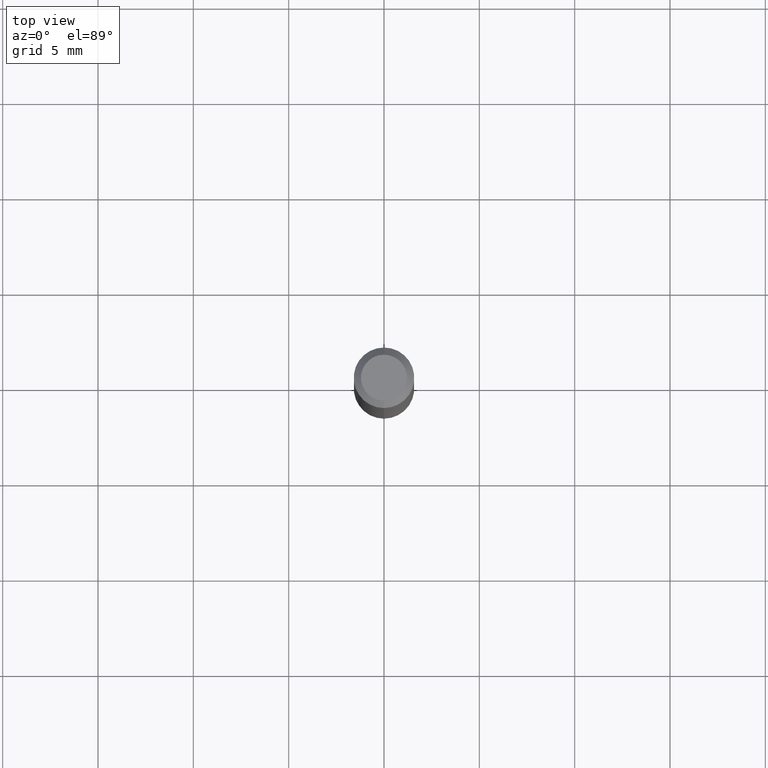
[diagram: clean part render]
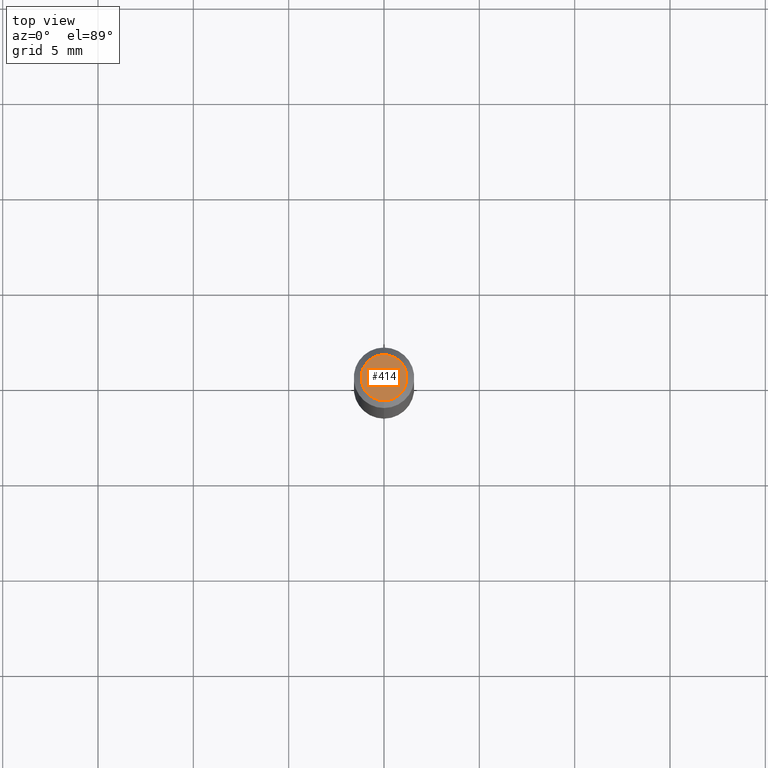
[diagram: same view with one face highlighted and labeled with its STEP entity id]
A machine part, top view. The second image highlights one B-rep face of the part: STEP entity #414.
In plain terms, the highlighted planar face has unit normal (0, -0, -1).
Its self-contained STEP definition (entity closure, byte-faithful):
#2 = CIRCLE ( 'NONE', #424, 0.04749999999999999362 ) ;
#6 = ORIENTED_EDGE ( 'NONE', *, *, #390, .T. ) ;
#31 = CARTESIAN_POINT ( 'NONE',  ( 3.840629472727447874E-16, 0.04749999999999999362, 7.364327909283752044E-17 ) ) ;
#51 = CARTESIAN_POINT ( 'NONE',  ( -3.773273898774340269E-16, -0.04749999999999999362, 4.053357106822457906E-16 ) ) ;
#121 = ORIENTED_EDGE ( 'NONE', *, *, #161, .T. ) ;
#128 = CARTESIAN_POINT ( 'NONE',  ( -5.856610887926061655E-45, 8.361773989407141763E-31, 2.394894948875416309E-16 ) ) ;
#155 = VERTEX_POINT ( 'NONE', #31 ) ;
#161 = EDGE_CURVE ( 'NONE', #155, #392, #2, .T. ) ;
#186 = DIRECTION ( 'NONE',  ( -2.445456278020119844E-29, 3.491499279888508481E-15, 1.000000000000000000 ) ) ;
#187 = DIRECTION ( 'NONE',  ( -6.982962677686266711E-15, -1.000000000000000000, 3.491499279888509270E-15 ) ) ;
#210 = DIRECTION ( 'NONE',  ( 6.982962677686265922E-15, 1.000000000000000000, -3.491499279888508481E-15 ) ) ;
#289 = DIRECTION ( 'NONE',  ( -2.445456278020119844E-29, 3.491499279888508481E-15, 1.000000000000000000 ) ) ;
#300 = CIRCLE ( 'NONE', #379, 0.04749999999999999362 ) ;
#316 = AXIS2_PLACEMENT_3D ( 'NONE', #492, #387, #210 ) ;
#326 = CARTESIAN_POINT ( 'NONE',  ( -5.856610887926061655E-45, 8.361773989407141763E-31, 2.394894948875416309E-16 ) ) ;
#379 = AXIS2_PLACEMENT_3D ( 'NONE', #128, #289, #187 ) ;
#384 = FACE_OUTER_BOUND ( 'NONE', #427, .T. ) ;
#387 = DIRECTION ( 'NONE',  ( 2.445456278020119564E-29, -3.491499279888508481E-15, -1.000000000000000000 ) ) ;
#390 = EDGE_CURVE ( 'NONE', #392, #155, #300, .T. ) ;
#392 = VERTEX_POINT ( 'NONE', #51 ) ;
#414 = ADVANCED_FACE ( 'NONE', ( #384 ), #416, .F. ) ;
#416 = PLANE ( 'NONE',  #316 ) ;
#424 = AXIS2_PLACEMENT_3D ( 'NONE', #326, #186, #432 ) ;
#427 = EDGE_LOOP ( 'NONE', ( #121, #6 ) ) ;
#432 = DIRECTION ( 'NONE',  ( -6.982962677686266711E-15, -1.000000000000000000, 3.491499279888509270E-15 ) ) ;
#492 = CARTESIAN_POINT ( 'NONE',  ( 3.316907271900976096E-16, 0.04749999999999999362, -4.610146835093330733E-17 ) ) ;